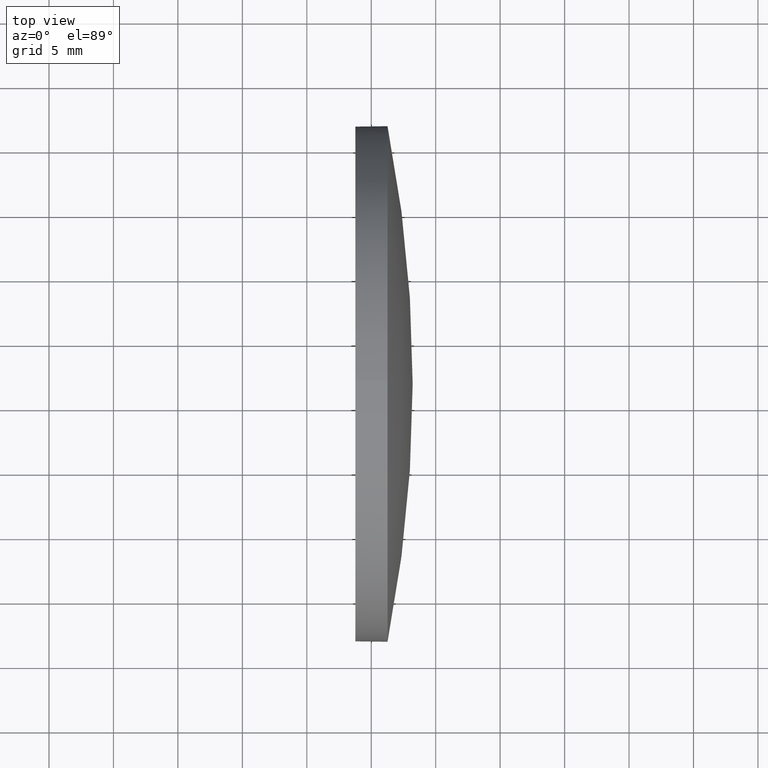
[diagram: clean part render]
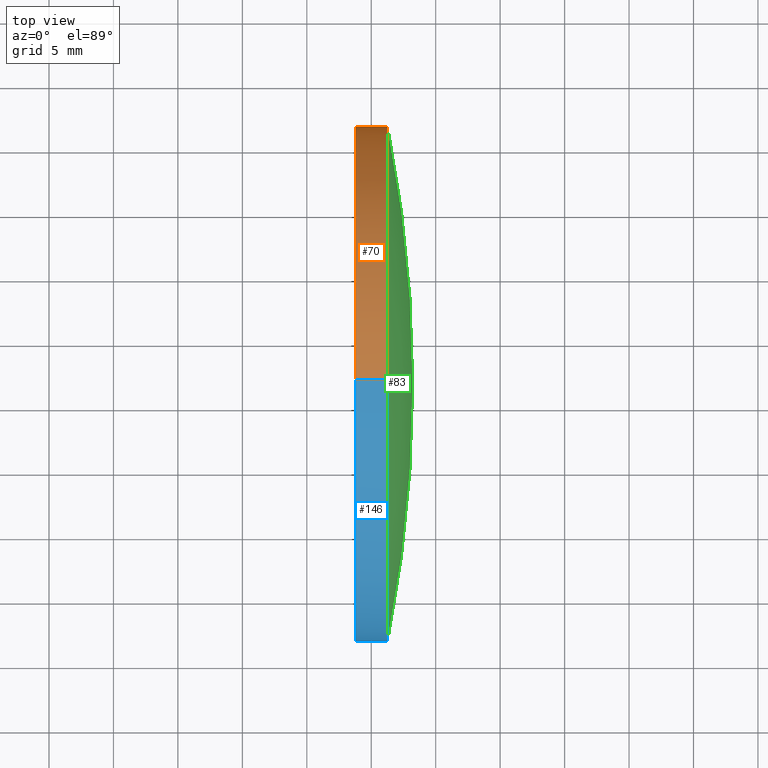
[diagram: same view with three faces highlighted in distinct colors, each labeled with its STEP entity id]
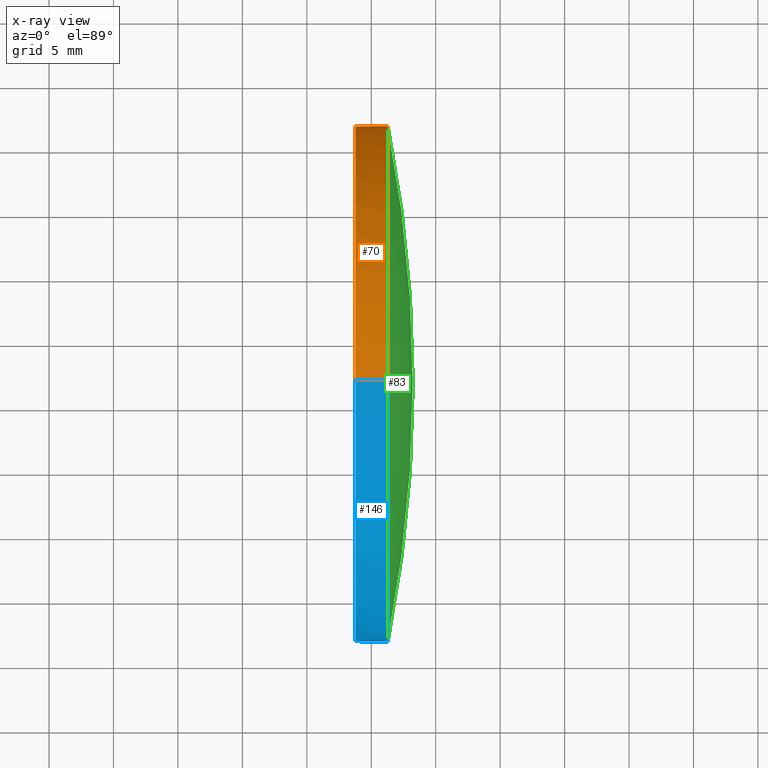
[diagram: x-ray of the same camera — body ghosted, the three highlighted faces saturated]
A machine part, top view with three faces highlighted in distinct colors.
The next image is the same camera in x-ray (body ghosted, the three faces saturated) — at least one of them is partly hidden behind the body in this view.
Their STEP definitions:

[orange] entity #70 — the highlighted cylindrical surface (partial cylindrical patch) has radius 20 mm, axis along (-1, -0, -0).
#5 = VERTEX_POINT ( 'NONE', #97 ) ;
#6 = CIRCLE ( 'NONE', #106, 20.00000000000000400 ) ;
#7 = EDGE_CURVE ( 'NONE', #5, #119, #6, .T. ) ;
#8 = ORIENTED_EDGE ( 'NONE', *, *, #23, .T. ) ;
#9 = VECTOR ( 'NONE', #104, 1000.000000000000000 ) ;
#12 = DIRECTION ( 'NONE',  ( 0.0000000000000000000, 0.0000000000000000000, 1.000000000000000000 ) ) ;
#18 = DIRECTION ( 'NONE',  ( -1.000000000000000000, -0.0000000000000000000, -0.0000000000000000000 ) ) ;
#22 = VERTEX_POINT ( 'NONE', #44 ) ;
#23 = EDGE_CURVE ( 'NONE', #22, #5, #111, .T. ) ;
#24 = LINE ( 'NONE', #144, #139 ) ;
#25 = EDGE_CURVE ( 'NONE', #119, #66, #24, .T. ) ;
#29 = CARTESIAN_POINT ( 'NONE',  ( 394.7992225166840400, 121.7145890969490300, 20.00000000000000400 ) ) ;
#30 = CARTESIAN_POINT ( 'NONE',  ( 398.7641761276700000, 121.7145890969490300, -20.00000000000000400 ) ) ;
#31 = CARTESIAN_POINT ( 'NONE',  ( 398.7641761276700000, 121.7145890969490300, 0.0000000000000000000 ) ) ;
#35 = CARTESIAN_POINT ( 'NONE',  ( 398.7641761276700000, 121.7145890969490300, 20.00000000000000400 ) ) ;
#36 = ORIENTED_EDGE ( 'NONE', *, *, #68, .F. ) ;
#41 = FACE_OUTER_BOUND ( 'NONE', #181, .T. ) ;
#44 = CARTESIAN_POINT ( 'NONE',  ( 401.2641761276700000, 121.7145890969490300, 20.00000000000000400 ) ) ;
#53 = LINE ( 'NONE', #29, #9 ) ;
#54 = AXIS2_PLACEMENT_3D ( 'NONE', #158, #169, #12 ) ;
#66 = VERTEX_POINT ( 'NONE', #30 ) ;
#68 = EDGE_CURVE ( 'NONE', #22, #101, #53, .T. ) ;
#70 = ADVANCED_FACE ( 'NONE', ( #41 ), #163, .T. ) ;
#76 = ORIENTED_EDGE ( 'NONE', *, *, #25, .T. ) ;
#78 = DIRECTION ( 'NONE',  ( -1.000000000000000000, -0.0000000000000000000, -0.0000000000000000000 ) ) ;
#87 = ORIENTED_EDGE ( 'NONE', *, *, #179, .F. ) ;
#88 = DIRECTION ( 'NONE',  ( 0.0000000000000000000, 0.0000000000000000000, 1.000000000000000000 ) ) ;
#97 = CARTESIAN_POINT ( 'NONE',  ( 401.2641761276700000, 141.7145890969490600, 0.0000000000000000000 ) ) ;
#101 = VERTEX_POINT ( 'NONE', #35 ) ;
#104 = DIRECTION ( 'NONE',  ( -1.000000000000000000, -0.0000000000000000000, -0.0000000000000000000 ) ) ;
#106 = AXIS2_PLACEMENT_3D ( 'NONE', #141, #178, #130 ) ;
#111 = CIRCLE ( 'NONE', #54, 20.00000000000000400 ) ;
#119 = VERTEX_POINT ( 'NONE', #166 ) ;
#130 = DIRECTION ( 'NONE',  ( 0.0000000000000000000, 0.0000000000000000000, 1.000000000000000000 ) ) ;
#133 = DIRECTION ( 'NONE',  ( 0.0000000000000000000, 0.0000000000000000000, 1.000000000000000000 ) ) ;
#139 = VECTOR ( 'NONE', #183, 1000.000000000000000 ) ;
#141 = CARTESIAN_POINT ( 'NONE',  ( 401.2641761276700000, 121.7145890969490300, 0.0000000000000000000 ) ) ;
#143 = AXIS2_PLACEMENT_3D ( 'NONE', #170, #18, #133 ) ;
#144 = CARTESIAN_POINT ( 'NONE',  ( 394.7992225166840400, 121.7145890969490300, -20.00000000000000400 ) ) ;
#154 = CIRCLE ( 'NONE', #159, 20.00000000000000400 ) ;
#155 = ORIENTED_EDGE ( 'NONE', *, *, #7, .T. ) ;
#158 = CARTESIAN_POINT ( 'NONE',  ( 401.2641761276700000, 121.7145890969490300, 0.0000000000000000000 ) ) ;
#159 = AXIS2_PLACEMENT_3D ( 'NONE', #31, #78, #88 ) ;
#163 = CYLINDRICAL_SURFACE ( 'NONE', #143, 20.00000000000000400 ) ;
#166 = CARTESIAN_POINT ( 'NONE',  ( 401.2641761276700000, 121.7145890969490300, -20.00000000000000400 ) ) ;
#169 = DIRECTION ( 'NONE',  ( -1.000000000000000000, -0.0000000000000000000, -0.0000000000000000000 ) ) ;
#170 = CARTESIAN_POINT ( 'NONE',  ( 394.7992225166840400, 121.7145890969490300, 0.0000000000000000000 ) ) ;
#178 = DIRECTION ( 'NONE',  ( -1.000000000000000000, -0.0000000000000000000, -0.0000000000000000000 ) ) ;
#179 = EDGE_CURVE ( 'NONE', #101, #66, #154, .T. ) ;
#181 = EDGE_LOOP ( 'NONE', ( #155, #76, #87, #36, #8 ) ) ;
#183 = DIRECTION ( 'NONE',  ( -1.000000000000000000, -0.0000000000000000000, -0.0000000000000000000 ) ) ;

[blue] entity #146 — the highlighted cylindrical surface (partial cylindrical patch) has radius 20 mm, axis along (-1, -0, -0).
#4 = EDGE_LOOP ( 'NONE', ( #153, #90, #167, #107, #173 ) ) ;
#9 = VECTOR ( 'NONE', #104, 1000.000000000000000 ) ;
#13 = CARTESIAN_POINT ( 'NONE',  ( 398.7641761276700000, 121.7145890969490300, 0.0000000000000000000 ) ) ;
#14 = DIRECTION ( 'NONE',  ( 0.0000000000000000000, 0.0000000000000000000, 1.000000000000000000 ) ) ;
#17 = DIRECTION ( 'NONE',  ( -1.000000000000000000, -0.0000000000000000000, -0.0000000000000000000 ) ) ;
#20 = EDGE_CURVE ( 'NONE', #180, #22, #102, .T. ) ;
#22 = VERTEX_POINT ( 'NONE', #44 ) ;
#24 = LINE ( 'NONE', #144, #139 ) ;
#25 = EDGE_CURVE ( 'NONE', #119, #66, #24, .T. ) ;
#26 = DIRECTION ( 'NONE',  ( 0.0000000000000000000, 0.0000000000000000000, 1.000000000000000000 ) ) ;
#28 = EDGE_CURVE ( 'NONE', #119, #180, #81, .T. ) ;
#29 = CARTESIAN_POINT ( 'NONE',  ( 394.7992225166840400, 121.7145890969490300, 20.00000000000000400 ) ) ;
#30 = CARTESIAN_POINT ( 'NONE',  ( 398.7641761276700000, 121.7145890969490300, -20.00000000000000400 ) ) ;
#35 = CARTESIAN_POINT ( 'NONE',  ( 398.7641761276700000, 121.7145890969490300, 20.00000000000000400 ) ) ;
#43 = DIRECTION ( 'NONE',  ( 0.0000000000000000000, 0.0000000000000000000, 1.000000000000000000 ) ) ;
#44 = CARTESIAN_POINT ( 'NONE',  ( 401.2641761276700000, 121.7145890969490300, 20.00000000000000400 ) ) ;
#47 = CIRCLE ( 'NONE', #96, 20.00000000000000400 ) ;
#49 = AXIS2_PLACEMENT_3D ( 'NONE', #85, #100, #43 ) ;
#53 = LINE ( 'NONE', #29, #9 ) ;
#58 = EDGE_CURVE ( 'NONE', #66, #101, #47, .T. ) ;
#59 = AXIS2_PLACEMENT_3D ( 'NONE', #184, #17, #74 ) ;
#66 = VERTEX_POINT ( 'NONE', #30 ) ;
#67 = AXIS2_PLACEMENT_3D ( 'NONE', #103, #132, #26 ) ;
#68 = EDGE_CURVE ( 'NONE', #22, #101, #53, .T. ) ;
#74 = DIRECTION ( 'NONE',  ( 0.0000000000000000000, 0.0000000000000000000, 1.000000000000000000 ) ) ;
#79 = CARTESIAN_POINT ( 'NONE',  ( 401.2641761276700000, 101.7145890969490300, -2.449293598294708100E-015 ) ) ;
#81 = CIRCLE ( 'NONE', #67, 20.00000000000000400 ) ;
#84 = DIRECTION ( 'NONE',  ( -1.000000000000000000, -0.0000000000000000000, -0.0000000000000000000 ) ) ;
#85 = CARTESIAN_POINT ( 'NONE',  ( 401.2641761276700000, 121.7145890969490300, 0.0000000000000000000 ) ) ;
#90 = ORIENTED_EDGE ( 'NONE', *, *, #28, .T. ) ;
#96 = AXIS2_PLACEMENT_3D ( 'NONE', #13, #84, #14 ) ;
#100 = DIRECTION ( 'NONE',  ( -1.000000000000000000, -0.0000000000000000000, -0.0000000000000000000 ) ) ;
#101 = VERTEX_POINT ( 'NONE', #35 ) ;
#102 = CIRCLE ( 'NONE', #49, 20.00000000000000400 ) ;
#103 = CARTESIAN_POINT ( 'NONE',  ( 401.2641761276700000, 121.7145890969490300, 0.0000000000000000000 ) ) ;
#104 = DIRECTION ( 'NONE',  ( -1.000000000000000000, -0.0000000000000000000, -0.0000000000000000000 ) ) ;
#107 = ORIENTED_EDGE ( 'NONE', *, *, #68, .T. ) ;
#119 = VERTEX_POINT ( 'NONE', #166 ) ;
#132 = DIRECTION ( 'NONE',  ( -1.000000000000000000, -0.0000000000000000000, -0.0000000000000000000 ) ) ;
#139 = VECTOR ( 'NONE', #183, 1000.000000000000000 ) ;
#144 = CARTESIAN_POINT ( 'NONE',  ( 394.7992225166840400, 121.7145890969490300, -20.00000000000000400 ) ) ;
#146 = ADVANCED_FACE ( 'NONE', ( #168 ), #182, .T. ) ;
#153 = ORIENTED_EDGE ( 'NONE', *, *, #25, .F. ) ;
#166 = CARTESIAN_POINT ( 'NONE',  ( 401.2641761276700000, 121.7145890969490300, -20.00000000000000400 ) ) ;
#167 = ORIENTED_EDGE ( 'NONE', *, *, #20, .T. ) ;
#168 = FACE_OUTER_BOUND ( 'NONE', #4, .T. ) ;
#173 = ORIENTED_EDGE ( 'NONE', *, *, #58, .F. ) ;
#180 = VERTEX_POINT ( 'NONE', #79 ) ;
#182 = CYLINDRICAL_SURFACE ( 'NONE', #59, 20.00000000000000400 ) ;
#183 = DIRECTION ( 'NONE',  ( -1.000000000000000000, -0.0000000000000000000, -0.0000000000000000000 ) ) ;
#184 = CARTESIAN_POINT ( 'NONE',  ( 394.7992225166840400, 121.7145890969490300, 0.0000000000000000000 ) ) ;

[green] entity #83 — the highlighted spherical surface has radius 103.539 mm.
#5 = VERTEX_POINT ( 'NONE', #97 ) ;
#12 = DIRECTION ( 'NONE',  ( 0.0000000000000000000, 0.0000000000000000000, 1.000000000000000000 ) ) ;
#20 = EDGE_CURVE ( 'NONE', #180, #22, #102, .T. ) ;
#22 = VERTEX_POINT ( 'NONE', #44 ) ;
#23 = EDGE_CURVE ( 'NONE', #22, #5, #111, .T. ) ;
#27 = DIRECTION ( 'NONE',  ( 0.0000000000000000000, 1.000000000000000000, 1.224646799147353000E-016 ) ) ;
#34 = EDGE_CURVE ( 'NONE', #174, #5, #37, .T. ) ;
#37 = CIRCLE ( 'NONE', #172, 103.5391025641022100 ) ;
#39 = SPHERICAL_SURFACE ( 'NONE', #127, 103.5391025641022100 ) ;
#43 = DIRECTION ( 'NONE',  ( 0.0000000000000000000, 0.0000000000000000000, 1.000000000000000000 ) ) ;
#44 = CARTESIAN_POINT ( 'NONE',  ( 401.2641761276700000, 121.7145890969490300, 20.00000000000000400 ) ) ;
#45 = CARTESIAN_POINT ( 'NONE',  ( 299.6750735635678200, 121.7145890969490300, 0.0000000000000000000 ) ) ;
#48 = DIRECTION ( 'NONE',  ( 0.0000000000000000000, 1.000000000000000000, 0.0000000000000000000 ) ) ;
#49 = AXIS2_PLACEMENT_3D ( 'NONE', #85, #100, #43 ) ;
#54 = AXIS2_PLACEMENT_3D ( 'NONE', #158, #169, #12 ) ;
#57 = EDGE_CURVE ( 'NONE', #174, #180, #186, .T. ) ;
#64 = AXIS2_PLACEMENT_3D ( 'NONE', #45, #118, #27 ) ;
#65 = ORIENTED_EDGE ( 'NONE', *, *, #57, .F. ) ;
#79 = CARTESIAN_POINT ( 'NONE',  ( 401.2641761276700000, 101.7145890969490300, -2.449293598294708100E-015 ) ) ;
#83 = ADVANCED_FACE ( 'NONE', ( #94 ), #39, .T. ) ;
#85 = CARTESIAN_POINT ( 'NONE',  ( 401.2641761276700000, 121.7145890969490300, 0.0000000000000000000 ) ) ;
#94 = FACE_OUTER_BOUND ( 'NONE', #175, .T. ) ;
#95 = ORIENTED_EDGE ( 'NONE', *, *, #23, .F. ) ;
#97 = CARTESIAN_POINT ( 'NONE',  ( 401.2641761276700000, 141.7145890969490600, 0.0000000000000000000 ) ) ;
#98 = ORIENTED_EDGE ( 'NONE', *, *, #34, .T. ) ;
#100 = DIRECTION ( 'NONE',  ( -1.000000000000000000, -0.0000000000000000000, -0.0000000000000000000 ) ) ;
#102 = CIRCLE ( 'NONE', #49, 20.00000000000000400 ) ;
#111 = CIRCLE ( 'NONE', #54, 20.00000000000000400 ) ;
#117 = DIRECTION ( 'NONE',  ( -0.0000000000000000000, 0.0000000000000000000, 1.000000000000000000 ) ) ;
#118 = DIRECTION ( 'NONE',  ( 0.0000000000000000000, 1.224646799147353200E-016, -1.000000000000000000 ) ) ;
#127 = AXIS2_PLACEMENT_3D ( 'NONE', #147, #135, #48 ) ;
#131 = DIRECTION ( 'NONE',  ( 1.000000000000000000, 0.0000000000000000000, 0.0000000000000000000 ) ) ;
#135 = DIRECTION ( 'NONE',  ( -0.0000000000000000000, 0.0000000000000000000, -1.000000000000000000 ) ) ;
#142 = ORIENTED_EDGE ( 'NONE', *, *, #20, .F. ) ;
#145 = CARTESIAN_POINT ( 'NONE',  ( 299.6750735635678200, 121.7145890969490300, 0.0000000000000000000 ) ) ;
#147 = CARTESIAN_POINT ( 'NONE',  ( 299.6750735635678200, 121.7145890969490300, 0.0000000000000000000 ) ) ;
#158 = CARTESIAN_POINT ( 'NONE',  ( 401.2641761276700000, 121.7145890969490300, 0.0000000000000000000 ) ) ;
#165 = CARTESIAN_POINT ( 'NONE',  ( 403.2141761276700400, 121.7145890969490300, 0.0000000000000000000 ) ) ;
#169 = DIRECTION ( 'NONE',  ( -1.000000000000000000, -0.0000000000000000000, -0.0000000000000000000 ) ) ;
#172 = AXIS2_PLACEMENT_3D ( 'NONE', #145, #117, #131 ) ;
#174 = VERTEX_POINT ( 'NONE', #165 ) ;
#175 = EDGE_LOOP ( 'NONE', ( #65, #98, #95, #142 ) ) ;
#180 = VERTEX_POINT ( 'NONE', #79 ) ;
#186 = CIRCLE ( 'NONE', #64, 103.5391025641022200 ) ;